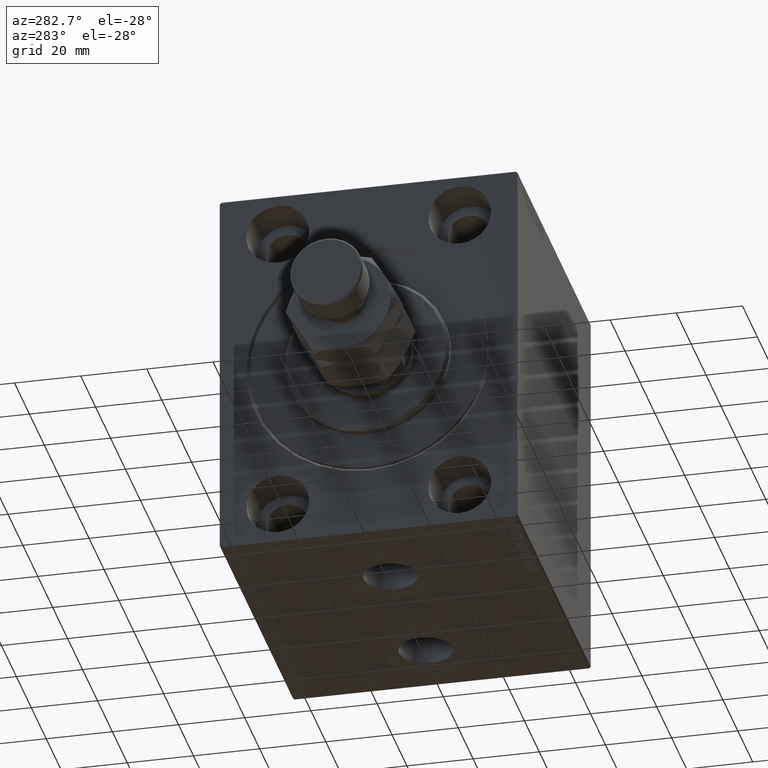
[diagram: clean part render]
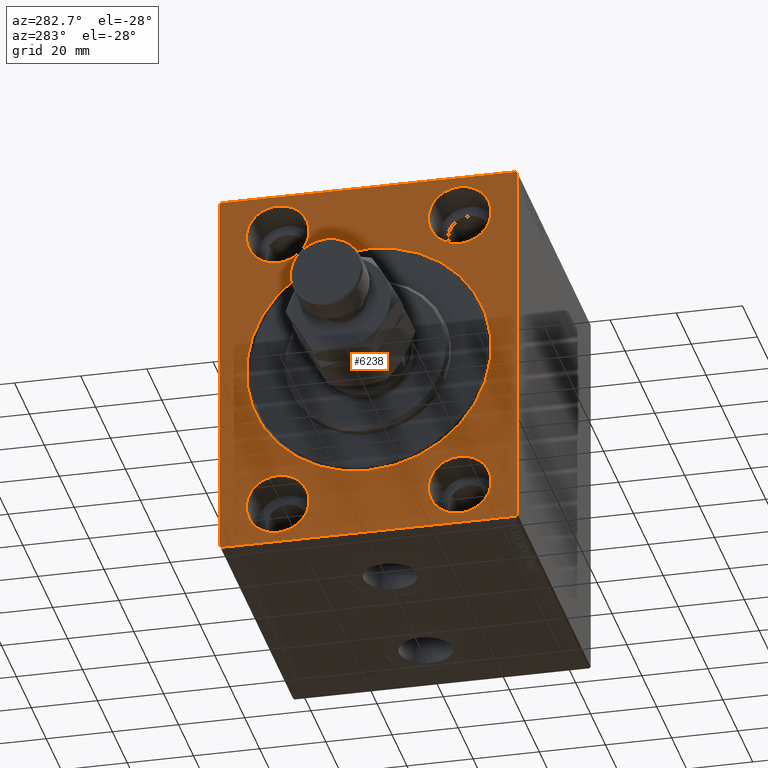
[diagram: same view with one face highlighted and labeled with its STEP entity id]
A machine part, auxiliary view. The second image highlights one B-rep face of the part: STEP entity #6238.
In plain terms, the highlighted planar face has unit normal (1, 0, 0).
Its self-contained STEP definition (entity closure, byte-faithful):
#108 = DIRECTION ( 'NONE',  ( -1.000000000000000000, 0.000000000000000000, 0.000000000000000000 ) ) ;
#699 = ORIENTED_EDGE ( 'NONE', *, *, #23292, .F. ) ;
#842 = DIRECTION ( 'NONE',  ( -1.000000000000000000, 0.000000000000000000, 0.000000000000000000 ) ) ;
#1387 = ORIENTED_EDGE ( 'NONE', *, *, #45129, .F. ) ;
#1530 = CARTESIAN_POINT ( 'NONE',  ( 0.000000000000000000, 0.000000000000000000, 0.000000000000000000 ) ) ;
#1584 = DIRECTION ( 'NONE',  ( 0.000000000000000000, 0.000000000000000000, -1.000000000000000000 ) ) ;
#2092 = CIRCLE ( 'NONE', #11115, 9.500000000000001776 ) ;
#2281 = CIRCLE ( 'NONE', #43078, 37.00000000000000711 ) ;
#2365 = LINE ( 'NONE', #42347, #20483 ) ;
#2553 = ORIENTED_EDGE ( 'NONE', *, *, #45072, .F. ) ;
#2573 = CARTESIAN_POINT ( 'NONE',  ( 0.000000000000000000, 45.00000000000000000, 57.50000000000000711 ) ) ;
#2828 = DIRECTION ( 'NONE',  ( -0.000000000000000000, 0.7071067811865474617, -0.7071067811865474617 ) ) ;
#2938 = EDGE_CURVE ( 'NONE', #7159, #12129, #12235, .T. ) ;
#2959 = CARTESIAN_POINT ( 'NONE',  ( 0.000000000000000000, -27.50000000000000000, -44.99999999999998579 ) ) ;
#3785 = CARTESIAN_POINT ( 'NONE',  ( 0.000000000000000000, 44.50000000000001421, 57.50000000000000711 ) ) ;
#4092 = CIRCLE ( 'NONE', #28223, 9.500000000000001776 ) ;
#4115 = CIRCLE ( 'NONE', #10147, 37.00000000000000711 ) ;
#4435 = EDGE_CURVE ( 'NONE', #27742, #40062, #13747, .T. ) ;
#4609 = DIRECTION ( 'NONE',  ( 0.000000000000000000, 0.000000000000000000, 1.000000000000000000 ) ) ;
#4739 = VECTOR ( 'NONE', #39993, 1000.000000000000114 ) ;
#5854 = VECTOR ( 'NONE', #16768, 1000.000000000000000 ) ;
#5952 = LINE ( 'NONE', #30809, #12724 ) ;
#6078 = EDGE_CURVE ( 'NONE', #8186, #41453, #25713, .T. ) ;
#6228 = DIRECTION ( 'NONE',  ( -1.000000000000000000, 0.000000000000000000, 0.000000000000000000 ) ) ;
#6238 = ADVANCED_FACE ( 'NONE', ( #19787, #33998, #8432, #30679, #22877, #34470 ), #33765, .F. ) ;
#6267 = VERTEX_POINT ( 'NONE', #24943 ) ;
#6928 = CARTESIAN_POINT ( 'NONE',  ( 0.000000000000000000, 44.50000000000000000, -57.50000000000000711 ) ) ;
#7159 = VERTEX_POINT ( 'NONE', #46387 ) ;
#7563 = EDGE_LOOP ( 'NONE', ( #26304, #24590 ) ) ;
#7626 = CARTESIAN_POINT ( 'NONE',  ( 0.000000000000000000, -44.50000000000000000, 57.49999999999999289 ) ) ;
#7968 = ORIENTED_EDGE ( 'NONE', *, *, #26134, .F. ) ;
#8074 = VERTEX_POINT ( 'NONE', #20093 ) ;
#8186 = VERTEX_POINT ( 'NONE', #33553 ) ;
#8432 = FACE_BOUND ( 'NONE', #30048, .T. ) ;
#8516 = VECTOR ( 'NONE', #36151, 1000.000000000000114 ) ;
#8932 = EDGE_CURVE ( 'NONE', #12129, #7159, #4092, .T. ) ;
#8952 = DIRECTION ( 'NONE',  ( 0.000000000000000000, 0.000000000000000000, -1.000000000000000000 ) ) ;
#10048 = VECTOR ( 'NONE', #37235, 1000.000000000000000 ) ;
#10147 = AXIS2_PLACEMENT_3D ( 'NONE', #1530, #27071, #42213 ) ;
#11115 = AXIS2_PLACEMENT_3D ( 'NONE', #21121, #6228, #45525 ) ;
#11194 = CARTESIAN_POINT ( 'NONE',  ( 0.000000000000000000, 4.531193156845207581E-15, -37.00000000000000711 ) ) ;
#12129 = VERTEX_POINT ( 'NONE', #42038 ) ;
#12235 = CIRCLE ( 'NONE', #19033, 9.500000000000001776 ) ;
#12496 = ORIENTED_EDGE ( 'NONE', *, *, #42641, .T. ) ;
#12677 = VERTEX_POINT ( 'NONE', #25244 ) ;
#12724 = VECTOR ( 'NONE', #20609, 1000.000000000000114 ) ;
#13738 = EDGE_LOOP ( 'NONE', ( #15136, #17344 ) ) ;
#13747 = CIRCLE ( 'NONE', #24335, 9.500000000000001776 ) ;
#14727 = CIRCLE ( 'NONE', #42660, 9.500000000000001776 ) ;
#14809 = VERTEX_POINT ( 'NONE', #22699 ) ;
#14901 = EDGE_CURVE ( 'NONE', #20378, #43258, #2281, .T. ) ;
#15136 = ORIENTED_EDGE ( 'NONE', *, *, #14901, .T. ) ;
#15199 = EDGE_LOOP ( 'NONE', ( #28370, #17119, #27191, #12496, #29028, #32551, #699, #45641 ) ) ;
#15538 = CARTESIAN_POINT ( 'NONE',  ( 0.000000000000000000, -27.50000000000000000, -54.49999999999998579 ) ) ;
#16768 = DIRECTION ( 'NONE',  ( 0.000000000000000000, -1.000000000000000000, -1.541976423090495387E-16 ) ) ;
#17089 = DIRECTION ( 'NONE',  ( -1.000000000000000000, 0.000000000000000000, 0.000000000000000000 ) ) ;
#17119 = ORIENTED_EDGE ( 'NONE', *, *, #20157, .T. ) ;
#17344 = ORIENTED_EDGE ( 'NONE', *, *, #29664, .T. ) ;
#18432 = CARTESIAN_POINT ( 'NONE',  ( 0.000000000000000000, -45.00000000000000000, 57.00000000000002132 ) ) ;
#18600 = VERTEX_POINT ( 'NONE', #23283 ) ;
#18944 = CARTESIAN_POINT ( 'NONE',  ( 0.000000000000000000, -45.00000000000000000, -57.50000000000000711 ) ) ;
#19033 = AXIS2_PLACEMENT_3D ( 'NONE', #31132, #45561, #20470 ) ;
#19099 = AXIS2_PLACEMENT_3D ( 'NONE', #2959, #108, #46491 ) ;
#19295 = DIRECTION ( 'NONE',  ( 0.000000000000000000, 0.000000000000000000, 1.000000000000000000 ) ) ;
#19508 = DIRECTION ( 'NONE',  ( 0.000000000000000000, -1.206764157201257045E-16, 1.000000000000000000 ) ) ;
#19787 = FACE_BOUND ( 'NONE', #13738, .T. ) ;
#20093 = CARTESIAN_POINT ( 'NONE',  ( 0.000000000000000000, -27.49999999999998934, 54.50000000000000711 ) ) ;
#20157 = EDGE_CURVE ( 'NONE', #14809, #46020, #43289, .T. ) ;
#20350 = VERTEX_POINT ( 'NONE', #31432 ) ;
#20378 = VERTEX_POINT ( 'NONE', #26943 ) ;
#20470 = DIRECTION ( 'NONE',  ( 0.000000000000000000, 0.000000000000000000, 1.000000000000000000 ) ) ;
#20483 = VECTOR ( 'NONE', #2828, 1000.000000000000114 ) ;
#20605 = CIRCLE ( 'NONE', #19099, 9.500000000000001776 ) ;
#20608 = AXIS2_PLACEMENT_3D ( 'NONE', #37327, #30215, #1584 ) ;
#20609 = DIRECTION ( 'NONE',  ( -0.000000000000000000, -0.7071067811865474617, 0.7071067811865474617 ) ) ;
#20711 = EDGE_CURVE ( 'NONE', #40062, #27742, #20605, .T. ) ;
#21121 = CARTESIAN_POINT ( 'NONE',  ( 0.000000000000000000, -27.49999999999998934, 45.00000000000000711 ) ) ;
#21241 = LINE ( 'NONE', #2573, #5854 ) ;
#21319 = DIRECTION ( 'NONE',  ( 0.000000000000000000, 0.000000000000000000, 1.000000000000000000 ) ) ;
#22412 = CARTESIAN_POINT ( 'NONE',  ( 0.000000000000000000, 45.00000000000001421, -57.00000000000002132 ) ) ;
#22699 = CARTESIAN_POINT ( 'NONE',  ( 0.000000000000000000, -45.00000000000000000, 57.00000000000002132 ) ) ;
#22877 = FACE_BOUND ( 'NONE', #25552, .T. ) ;
#23024 = EDGE_CURVE ( 'NONE', #14809, #12677, #25621, .T. ) ;
#23283 = CARTESIAN_POINT ( 'NONE',  ( 0.000000000000000000, 45.00000000000000000, 56.99999999999999289 ) ) ;
#23292 = EDGE_CURVE ( 'NONE', #6267, #41453, #40508, .T. ) ;
#23678 = EDGE_LOOP ( 'NONE', ( #7968, #45534 ) ) ;
#24335 = AXIS2_PLACEMENT_3D ( 'NONE', #24655, #17089, #42883 ) ;
#24590 = ORIENTED_EDGE ( 'NONE', *, *, #2938, .F. ) ;
#24655 = CARTESIAN_POINT ( 'NONE',  ( 0.000000000000000000, -27.50000000000000000, -44.99999999999998579 ) ) ;
#24943 = CARTESIAN_POINT ( 'NONE',  ( 0.000000000000000000, -44.50000000000001421, -57.50000000000000711 ) ) ;
#25244 = CARTESIAN_POINT ( 'NONE',  ( 0.000000000000000000, -45.00000000000000000, -57.00000000000002132 ) ) ;
#25477 = AXIS2_PLACEMENT_3D ( 'NONE', #41062, #26141, #4609 ) ;
#25552 = EDGE_LOOP ( 'NONE', ( #38870, #30663 ) ) ;
#25621 = LINE ( 'NONE', #28932, #10048 ) ;
#25713 = LINE ( 'NONE', #22412, #8516 ) ;
#26134 = EDGE_CURVE ( 'NONE', #20350, #45253, #14727, .T. ) ;
#26141 = DIRECTION ( 'NONE',  ( -1.000000000000000000, 0.000000000000000000, 0.000000000000000000 ) ) ;
#26304 = ORIENTED_EDGE ( 'NONE', *, *, #8932, .F. ) ;
#26604 = LINE ( 'NONE', #40822, #35140 ) ;
#26943 = CARTESIAN_POINT ( 'NONE',  ( 0.000000000000000000, 0.000000000000000000, 37.00000000000000711 ) ) ;
#27071 = DIRECTION ( 'NONE',  ( 1.000000000000000000, 0.000000000000000000, 0.000000000000000000 ) ) ;
#27191 = ORIENTED_EDGE ( 'NONE', *, *, #36603, .F. ) ;
#27742 = VERTEX_POINT ( 'NONE', #15538 ) ;
#28223 = AXIS2_PLACEMENT_3D ( 'NONE', #36005, #28881, #21319 ) ;
#28370 = ORIENTED_EDGE ( 'NONE', *, *, #23024, .F. ) ;
#28881 = DIRECTION ( 'NONE',  ( -1.000000000000000000, 0.000000000000000000, 0.000000000000000000 ) ) ;
#28932 = CARTESIAN_POINT ( 'NONE',  ( 0.000000000000000000, -45.00000000000000000, 57.49999999999999289 ) ) ;
#29028 = ORIENTED_EDGE ( 'NONE', *, *, #31049, .F. ) ;
#29664 = EDGE_CURVE ( 'NONE', #43258, #20378, #4115, .T. ) ;
#30048 = EDGE_LOOP ( 'NONE', ( #1387, #2553 ) ) ;
#30215 = DIRECTION ( 'NONE',  ( 1.000000000000000000, 0.000000000000000000, 0.000000000000000000 ) ) ;
#30663 = ORIENTED_EDGE ( 'NONE', *, *, #4435, .F. ) ;
#30679 = FACE_BOUND ( 'NONE', #23678, .T. ) ;
#30770 = EDGE_CURVE ( 'NONE', #45253, #20350, #42692, .T. ) ;
#30809 = CARTESIAN_POINT ( 'NONE',  ( 0.000000000000000000, -44.50000000000001421, -57.50000000000000711 ) ) ;
#31049 = EDGE_CURVE ( 'NONE', #8186, #18600, #26604, .T. ) ;
#31132 = CARTESIAN_POINT ( 'NONE',  ( 0.000000000000000000, 27.49999999999998934, -44.99999999999998579 ) ) ;
#31432 = CARTESIAN_POINT ( 'NONE',  ( 0.000000000000000000, 27.50000000000001066, 54.50000000000000711 ) ) ;
#31612 = DIRECTION ( 'NONE',  ( 0.000000000000000000, 0.000000000000000000, 1.000000000000000000 ) ) ;
#32551 = ORIENTED_EDGE ( 'NONE', *, *, #6078, .T. ) ;
#33389 = DIRECTION ( 'NONE',  ( 0.000000000000000000, 1.000000000000000000, 0.000000000000000000 ) ) ;
#33553 = CARTESIAN_POINT ( 'NONE',  ( 0.000000000000000000, 45.00000000000001421, -57.00000000000002132 ) ) ;
#33765 = PLANE ( 'NONE',  #20608 ) ;
#33998 = FACE_BOUND ( 'NONE', #7563, .T. ) ;
#34470 = FACE_OUTER_BOUND ( 'NONE', #15199, .T. ) ;
#34481 = CARTESIAN_POINT ( 'NONE',  ( 0.000000000000000000, 27.50000000000001066, 45.00000000000000711 ) ) ;
#35140 = VECTOR ( 'NONE', #19508, 1000.000000000000000 ) ;
#36005 = CARTESIAN_POINT ( 'NONE',  ( 0.000000000000000000, 27.49999999999998934, -44.99999999999998579 ) ) ;
#36151 = DIRECTION ( 'NONE',  ( 0.000000000000000000, -0.7071067811865474617, -0.7071067811865474617 ) ) ;
#36603 = EDGE_CURVE ( 'NONE', #44267, #46020, #21241, .T. ) ;
#37235 = DIRECTION ( 'NONE',  ( 0.000000000000000000, 0.000000000000000000, -1.000000000000000000 ) ) ;
#37294 = CARTESIAN_POINT ( 'NONE',  ( 0.000000000000000000, 27.50000000000001066, 45.00000000000000711 ) ) ;
#37327 = CARTESIAN_POINT ( 'NONE',  ( 0.000000000000000000, 0.000000000000000000, 0.000000000000000000 ) ) ;
#37469 = CARTESIAN_POINT ( 'NONE',  ( 0.000000000000000000, -27.49999999999998934, 35.50000000000000711 ) ) ;
#38082 = DIRECTION ( 'NONE',  ( 1.000000000000000000, 0.000000000000000000, 0.000000000000000000 ) ) ;
#38092 = CARTESIAN_POINT ( 'NONE',  ( 0.000000000000000000, 27.50000000000001066, 35.50000000000000711 ) ) ;
#38646 = EDGE_CURVE ( 'NONE', #6267, #12677, #5952, .T. ) ;
#38870 = ORIENTED_EDGE ( 'NONE', *, *, #20711, .F. ) ;
#39597 = VECTOR ( 'NONE', #33389, 1000.000000000000000 ) ;
#39993 = DIRECTION ( 'NONE',  ( -0.000000000000000000, 0.7071067811865474617, 0.7071067811865474617 ) ) ;
#40062 = VERTEX_POINT ( 'NONE', #43672 ) ;
#40508 = LINE ( 'NONE', #18944, #39597 ) ;
#40822 = CARTESIAN_POINT ( 'NONE',  ( 0.000000000000000000, 45.00000000000001421, -57.50000000000000711 ) ) ;
#41062 = CARTESIAN_POINT ( 'NONE',  ( 0.000000000000000000, -27.49999999999998934, 45.00000000000000711 ) ) ;
#41404 = CARTESIAN_POINT ( 'NONE',  ( 0.000000000000000000, 0.000000000000000000, 0.000000000000000000 ) ) ;
#41453 = VERTEX_POINT ( 'NONE', #6928 ) ;
#41507 = VERTEX_POINT ( 'NONE', #37469 ) ;
#42038 = CARTESIAN_POINT ( 'NONE',  ( 0.000000000000000000, 27.49999999999998934, -35.49999999999998579 ) ) ;
#42213 = DIRECTION ( 'NONE',  ( 0.000000000000000000, 0.000000000000000000, -1.000000000000000000 ) ) ;
#42347 = CARTESIAN_POINT ( 'NONE',  ( 0.000000000000000000, 44.50000000000001421, 57.50000000000000711 ) ) ;
#42641 = EDGE_CURVE ( 'NONE', #44267, #18600, #2365, .T. ) ;
#42660 = AXIS2_PLACEMENT_3D ( 'NONE', #37294, #842, #19295 ) ;
#42692 = CIRCLE ( 'NONE', #43472, 9.500000000000001776 ) ;
#42883 = DIRECTION ( 'NONE',  ( 0.000000000000000000, 0.000000000000000000, 1.000000000000000000 ) ) ;
#43078 = AXIS2_PLACEMENT_3D ( 'NONE', #41404, #38082, #8952 ) ;
#43258 = VERTEX_POINT ( 'NONE', #11194 ) ;
#43289 = LINE ( 'NONE', #18432, #4739 ) ;
#43472 = AXIS2_PLACEMENT_3D ( 'NONE', #34481, #46269, #31612 ) ;
#43672 = CARTESIAN_POINT ( 'NONE',  ( 0.000000000000000000, -27.50000000000000000, -35.49999999999998579 ) ) ;
#44267 = VERTEX_POINT ( 'NONE', #3785 ) ;
#44370 = CIRCLE ( 'NONE', #25477, 9.500000000000001776 ) ;
#45072 = EDGE_CURVE ( 'NONE', #41507, #8074, #44370, .T. ) ;
#45129 = EDGE_CURVE ( 'NONE', #8074, #41507, #2092, .T. ) ;
#45253 = VERTEX_POINT ( 'NONE', #38092 ) ;
#45525 = DIRECTION ( 'NONE',  ( 0.000000000000000000, 0.000000000000000000, 1.000000000000000000 ) ) ;
#45534 = ORIENTED_EDGE ( 'NONE', *, *, #30770, .F. ) ;
#45561 = DIRECTION ( 'NONE',  ( -1.000000000000000000, 0.000000000000000000, 0.000000000000000000 ) ) ;
#45641 = ORIENTED_EDGE ( 'NONE', *, *, #38646, .T. ) ;
#46020 = VERTEX_POINT ( 'NONE', #7626 ) ;
#46269 = DIRECTION ( 'NONE',  ( -1.000000000000000000, 0.000000000000000000, 0.000000000000000000 ) ) ;
#46387 = CARTESIAN_POINT ( 'NONE',  ( 0.000000000000000000, 27.49999999999998934, -54.49999999999998579 ) ) ;
#46491 = DIRECTION ( 'NONE',  ( 0.000000000000000000, 0.000000000000000000, 1.000000000000000000 ) ) ;